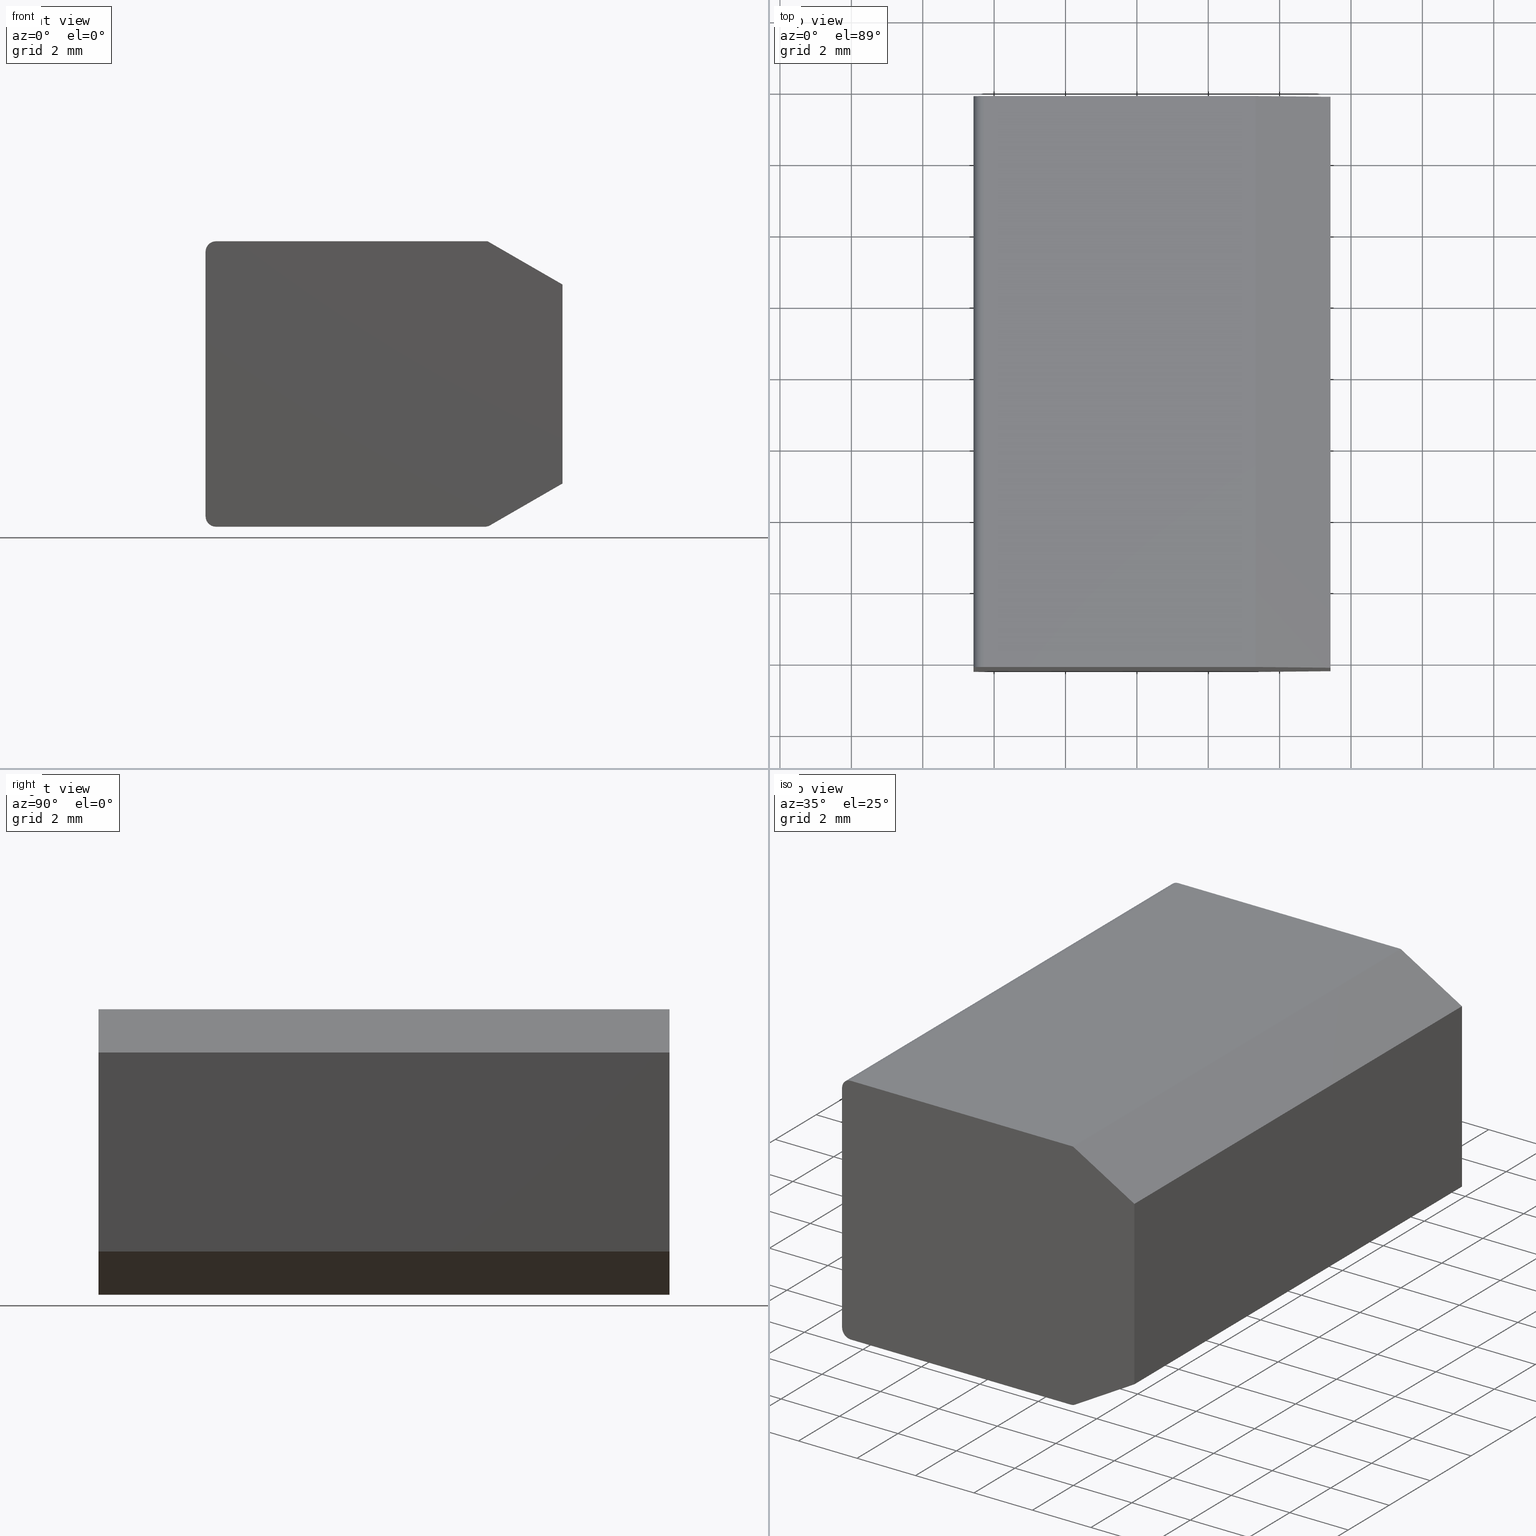
[diagram: canonical four-view strip — front | top / right | iso, engineering-drawing reading convention]
A machine part, canonical four-view strip (front | top / right | iso — engineering-drawing reading convention). The complete STEP part file that produces these views, byte-faithful:
ISO-10303-21;
HEADER;
/* Generated by software containing ST-Developer
 * from STEP Tools, Inc. (www.steptools.com) 
 */

FILE_DESCRIPTION(
/* description */ ('WKZ-0469'),
/* implementation_level */ '2;1');

FILE_NAME(
/* name */ 'O_3_01_02_00_01_WKZ-0469.stp',
/* time_stamp */ '2025-11-21T09:00:42+01:00',
/* author */ ('d.fischer'),
/* organization */ (''),
/* preprocessor_version */ 'ST-DEVELOPER v20',
/* originating_system */ 'Autodesk Inventor 2025',
/* authorisation */ '');

FILE_SCHEMA (('AUTOMOTIVE_DESIGN { 1 0 10303 214 3 1 1 }'));
ENDSEC;

DATA;
#10=MECHANICAL_DESIGN_GEOMETRIC_PRESENTATION_REPRESENTATION('',(#13),#487);
#11=SHAPE_REPRESENTATION_RELATIONSHIP('SRR','None',#494,#12);
#12=ADVANCED_BREP_SHAPE_REPRESENTATION('',(#14),#486);
#13=STYLED_ITEM('',(#503),#14);
#14=MANIFOLD_SOLID_BREP('Volumenk\X\F6rper1',#276);
#15=FACE_BOUND('',#59,.T.);
#16=FACE_BOUND('',#68,.T.);
#17=CYLINDRICAL_SURFACE('',#307,1.44827586078);
#18=CYLINDRICAL_SURFACE('',#311,3.43842364226);
#19=CYLINDRICAL_SURFACE('',#318,0.295566502200013);
#20=CYLINDRICAL_SURFACE('',#321,0.295566502199999);
#21=CYLINDRICAL_SURFACE('',#323,0.2955665022);
#22=CONICAL_SURFACE('',#305,0.724137930390002,1.01229096615671);
#23=CONICAL_SURFACE('',#309,2.44334975152,0.785398163397448);
#24=CIRCLE('',#301,0.295566502199999);
#25=CIRCLE('',#302,0.2955665022);
#26=CIRCLE('',#303,0.295566502200013);
#27=CIRCLE('',#306,1.44827586078);
#28=CIRCLE('',#308,1.44827586078);
#29=CIRCLE('',#310,3.43842364226);
#30=CIRCLE('',#312,3.43842364226);
#31=CIRCLE('',#314,0.295566502200013);
#32=CIRCLE('',#315,0.2955665022);
#33=CIRCLE('',#316,0.295566502199999);
#34=CIRCLE('',#317,3.4499999969295);
#35=FACE_OUTER_BOUND('',#51,.T.);
#36=FACE_OUTER_BOUND('',#52,.T.);
#37=FACE_OUTER_BOUND('',#53,.T.);
#38=FACE_OUTER_BOUND('',#54,.T.);
#39=FACE_OUTER_BOUND('',#55,.T.);
#40=FACE_OUTER_BOUND('',#56,.T.);
#41=FACE_OUTER_BOUND('',#57,.T.);
#42=FACE_OUTER_BOUND('',#58,.T.);
#43=FACE_OUTER_BOUND('',#60,.T.);
#44=FACE_OUTER_BOUND('',#61,.T.);
#45=FACE_OUTER_BOUND('',#62,.T.);
#46=FACE_OUTER_BOUND('',#63,.T.);
#47=FACE_OUTER_BOUND('',#64,.T.);
#48=FACE_OUTER_BOUND('',#65,.T.);
#49=FACE_OUTER_BOUND('',#66,.T.);
#50=FACE_OUTER_BOUND('',#67,.T.);
#51=EDGE_LOOP('',(#179,#180,#181,#182));
#52=EDGE_LOOP('',(#183,#184,#185,#186,#187,#188,#189,#190,#191));
#53=EDGE_LOOP('',(#192,#193,#194,#195));
#54=EDGE_LOOP('',(#196,#197,#198));
#55=EDGE_LOOP('',(#199,#200,#201,#202));
#56=EDGE_LOOP('',(#203,#204,#205,#206));
#57=EDGE_LOOP('',(#207,#208,#209,#210));
#58=EDGE_LOOP('',(#211,#212,#213,#214,#215,#216,#217,#218,#219));
#59=EDGE_LOOP('',(#220));
#60=EDGE_LOOP('',(#221,#222,#223,#224));
#61=EDGE_LOOP('',(#225,#226,#227,#228));
#62=EDGE_LOOP('',(#229,#230,#231,#232));
#63=EDGE_LOOP('',(#233,#234,#235,#236));
#64=EDGE_LOOP('',(#237,#238,#239,#240));
#65=EDGE_LOOP('',(#241,#242,#243,#244));
#66=EDGE_LOOP('',(#245,#246,#247,#248));
#67=EDGE_LOOP('',(#249));
#68=EDGE_LOOP('',(#250));
#69=LINE('',#411,#94);
#70=LINE('',#413,#95);
#71=LINE('',#415,#96);
#72=LINE('',#416,#97);
#73=LINE('',#419,#98);
#74=LINE('',#421,#99);
#75=LINE('',#425,#100);
#76=LINE('',#429,#101);
#77=LINE('',#432,#102);
#78=LINE('',#435,#103);
#79=LINE('',#436,#104);
#80=LINE('',#440,#105);
#81=LINE('',#444,#106);
#82=LINE('',#448,#107);
#83=LINE('',#452,#108);
#84=LINE('',#456,#109);
#85=LINE('',#460,#110);
#86=LINE('',#464,#111);
#87=LINE('',#467,#112);
#88=LINE('',#471,#113);
#89=LINE('',#472,#114);
#90=LINE('',#475,#115);
#91=LINE('',#477,#116);
#92=LINE('',#479,#117);
#93=LINE('',#481,#118);
#94=VECTOR('',#330,10.);
#95=VECTOR('',#331,10.);
#96=VECTOR('',#332,10.);
#97=VECTOR('',#333,10.);
#98=VECTOR('',#336,9.85221674);
#99=VECTOR('',#337,9.85221674);
#100=VECTOR('',#340,9.85221674);
#101=VECTOR('',#343,9.85221674);
#102=VECTOR('',#346,9.85221674);
#103=VECTOR('',#349,9.85221674);
#104=VECTOR('',#350,9.85221674);
#105=VECTOR('',#353,0.724137930390002);
#106=VECTOR('',#358,1.44827586078);
#107=VECTOR('',#363,2.44334975152);
#108=VECTOR('',#368,3.43842364226);
#109=VECTOR('',#373,9.85221674);
#110=VECTOR('',#376,9.85221674);
#111=VECTOR('',#379,9.85221674);
#112=VECTOR('',#382,9.85221674);
#113=VECTOR('',#387,9.85221674);
#114=VECTOR('',#388,9.85221674);
#115=VECTOR('',#393,9.85221674);
#116=VECTOR('',#396,9.85221674);
#117=VECTOR('',#399,9.85221674);
#118=VECTOR('',#402,9.85221674);
#119=VERTEX_POINT('',#409);
#120=VERTEX_POINT('',#410);
#121=VERTEX_POINT('',#412);
#122=VERTEX_POINT('',#414);
#123=VERTEX_POINT('',#418);
#124=VERTEX_POINT('',#420);
#125=VERTEX_POINT('',#422);
#126=VERTEX_POINT('',#424);
#127=VERTEX_POINT('',#426);
#128=VERTEX_POINT('',#428);
#129=VERTEX_POINT('',#430);
#130=VERTEX_POINT('',#434);
#131=VERTEX_POINT('',#438);
#132=VERTEX_POINT('',#439);
#133=VERTEX_POINT('',#443);
#134=VERTEX_POINT('',#447);
#135=VERTEX_POINT('',#451);
#136=VERTEX_POINT('',#455);
#137=VERTEX_POINT('',#457);
#138=VERTEX_POINT('',#459);
#139=VERTEX_POINT('',#461);
#140=VERTEX_POINT('',#463);
#141=VERTEX_POINT('',#465);
#142=VERTEX_POINT('',#468);
#143=EDGE_CURVE('',#119,#120,#69,.T.);
#144=EDGE_CURVE('',#121,#119,#70,.T.);
#145=EDGE_CURVE('',#122,#121,#71,.T.);
#146=EDGE_CURVE('',#120,#122,#72,.T.);
#147=EDGE_CURVE('',#122,#123,#73,.T.);
#148=EDGE_CURVE('',#123,#124,#74,.T.);
#149=EDGE_CURVE('',#124,#125,#24,.T.);
#150=EDGE_CURVE('',#125,#126,#75,.T.);
#151=EDGE_CURVE('',#126,#127,#25,.T.);
#152=EDGE_CURVE('',#127,#128,#76,.T.);
#153=EDGE_CURVE('',#128,#129,#26,.T.);
#154=EDGE_CURVE('',#129,#120,#77,.T.);
#155=EDGE_CURVE('',#130,#121,#78,.T.);
#156=EDGE_CURVE('',#123,#130,#79,.T.);
#157=EDGE_CURVE('',#131,#132,#80,.T.);
#158=EDGE_CURVE('',#132,#132,#27,.T.);
#159=EDGE_CURVE('',#132,#133,#81,.T.);
#160=EDGE_CURVE('',#133,#133,#28,.T.);
#161=EDGE_CURVE('',#133,#134,#82,.T.);
#162=EDGE_CURVE('',#134,#134,#29,.T.);
#163=EDGE_CURVE('',#134,#135,#83,.T.);
#164=EDGE_CURVE('',#135,#135,#30,.T.);
#165=EDGE_CURVE('',#119,#136,#84,.T.);
#166=EDGE_CURVE('',#136,#137,#31,.T.);
#167=EDGE_CURVE('',#137,#138,#85,.T.);
#168=EDGE_CURVE('',#138,#139,#32,.T.);
#169=EDGE_CURVE('',#139,#140,#86,.T.);
#170=EDGE_CURVE('',#140,#141,#33,.T.);
#171=EDGE_CURVE('',#141,#130,#87,.T.);
#172=EDGE_CURVE('',#142,#142,#34,.T.);
#173=EDGE_CURVE('',#129,#136,#88,.T.);
#174=EDGE_CURVE('',#128,#137,#89,.T.);
#175=EDGE_CURVE('',#124,#141,#90,.T.);
#176=EDGE_CURVE('',#125,#140,#91,.T.);
#177=EDGE_CURVE('',#126,#139,#92,.T.);
#178=EDGE_CURVE('',#127,#138,#93,.T.);
#179=ORIENTED_EDGE('',*,*,#143,.F.);
#180=ORIENTED_EDGE('',*,*,#144,.F.);
#181=ORIENTED_EDGE('',*,*,#145,.F.);
#182=ORIENTED_EDGE('',*,*,#146,.F.);
#183=ORIENTED_EDGE('',*,*,#146,.T.);
#184=ORIENTED_EDGE('',*,*,#147,.T.);
#185=ORIENTED_EDGE('',*,*,#148,.T.);
#186=ORIENTED_EDGE('',*,*,#149,.T.);
#187=ORIENTED_EDGE('',*,*,#150,.T.);
#188=ORIENTED_EDGE('',*,*,#151,.T.);
#189=ORIENTED_EDGE('',*,*,#152,.T.);
#190=ORIENTED_EDGE('',*,*,#153,.T.);
#191=ORIENTED_EDGE('',*,*,#154,.T.);
#192=ORIENTED_EDGE('',*,*,#145,.T.);
#193=ORIENTED_EDGE('',*,*,#155,.F.);
#194=ORIENTED_EDGE('',*,*,#156,.F.);
#195=ORIENTED_EDGE('',*,*,#147,.F.);
#196=ORIENTED_EDGE('',*,*,#157,.T.);
#197=ORIENTED_EDGE('',*,*,#158,.T.);
#198=ORIENTED_EDGE('',*,*,#157,.F.);
#199=ORIENTED_EDGE('',*,*,#158,.F.);
#200=ORIENTED_EDGE('',*,*,#159,.T.);
#201=ORIENTED_EDGE('',*,*,#160,.T.);
#202=ORIENTED_EDGE('',*,*,#159,.F.);
#203=ORIENTED_EDGE('',*,*,#160,.F.);
#204=ORIENTED_EDGE('',*,*,#161,.T.);
#205=ORIENTED_EDGE('',*,*,#162,.T.);
#206=ORIENTED_EDGE('',*,*,#161,.F.);
#207=ORIENTED_EDGE('',*,*,#162,.F.);
#208=ORIENTED_EDGE('',*,*,#163,.T.);
#209=ORIENTED_EDGE('',*,*,#164,.F.);
#210=ORIENTED_EDGE('',*,*,#163,.F.);
#211=ORIENTED_EDGE('',*,*,#144,.T.);
#212=ORIENTED_EDGE('',*,*,#165,.T.);
#213=ORIENTED_EDGE('',*,*,#166,.T.);
#214=ORIENTED_EDGE('',*,*,#167,.T.);
#215=ORIENTED_EDGE('',*,*,#168,.T.);
#216=ORIENTED_EDGE('',*,*,#169,.T.);
#217=ORIENTED_EDGE('',*,*,#170,.T.);
#218=ORIENTED_EDGE('',*,*,#171,.T.);
#219=ORIENTED_EDGE('',*,*,#155,.T.);
#220=ORIENTED_EDGE('',*,*,#172,.F.);
#221=ORIENTED_EDGE('',*,*,#166,.F.);
#222=ORIENTED_EDGE('',*,*,#173,.F.);
#223=ORIENTED_EDGE('',*,*,#153,.F.);
#224=ORIENTED_EDGE('',*,*,#174,.T.);
#225=ORIENTED_EDGE('',*,*,#143,.T.);
#226=ORIENTED_EDGE('',*,*,#154,.F.);
#227=ORIENTED_EDGE('',*,*,#173,.T.);
#228=ORIENTED_EDGE('',*,*,#165,.F.);
#229=ORIENTED_EDGE('',*,*,#171,.F.);
#230=ORIENTED_EDGE('',*,*,#175,.F.);
#231=ORIENTED_EDGE('',*,*,#148,.F.);
#232=ORIENTED_EDGE('',*,*,#156,.T.);
#233=ORIENTED_EDGE('',*,*,#170,.F.);
#234=ORIENTED_EDGE('',*,*,#176,.F.);
#235=ORIENTED_EDGE('',*,*,#149,.F.);
#236=ORIENTED_EDGE('',*,*,#175,.T.);
#237=ORIENTED_EDGE('',*,*,#169,.F.);
#238=ORIENTED_EDGE('',*,*,#177,.F.);
#239=ORIENTED_EDGE('',*,*,#150,.F.);
#240=ORIENTED_EDGE('',*,*,#176,.T.);
#241=ORIENTED_EDGE('',*,*,#168,.F.);
#242=ORIENTED_EDGE('',*,*,#178,.F.);
#243=ORIENTED_EDGE('',*,*,#151,.F.);
#244=ORIENTED_EDGE('',*,*,#177,.T.);
#245=ORIENTED_EDGE('',*,*,#167,.F.);
#246=ORIENTED_EDGE('',*,*,#174,.F.);
#247=ORIENTED_EDGE('',*,*,#152,.F.);
#248=ORIENTED_EDGE('',*,*,#178,.T.);
#249=ORIENTED_EDGE('',*,*,#172,.T.);
#250=ORIENTED_EDGE('',*,*,#164,.T.);
#251=PLANE('',#299);
#252=PLANE('',#300);
#253=PLANE('',#304);
#254=PLANE('',#313);
#255=PLANE('',#319);
#256=PLANE('',#320);
#257=PLANE('',#322);
#258=PLANE('',#324);
#259=PLANE('',#325);
#260=ADVANCED_FACE('',(#35),#251,.F.);
#261=ADVANCED_FACE('',(#36),#252,.T.);
#262=ADVANCED_FACE('',(#37),#253,.T.);
#263=ADVANCED_FACE('',(#38),#22,.F.);
#264=ADVANCED_FACE('',(#39),#17,.F.);
#265=ADVANCED_FACE('',(#40),#23,.F.);
#266=ADVANCED_FACE('',(#41),#18,.F.);
#267=ADVANCED_FACE('',(#42,#15),#254,.T.);
#268=ADVANCED_FACE('',(#43),#19,.T.);
#269=ADVANCED_FACE('',(#44),#255,.T.);
#270=ADVANCED_FACE('',(#45),#256,.T.);
#271=ADVANCED_FACE('',(#46),#20,.T.);
#272=ADVANCED_FACE('',(#47),#257,.T.);
#273=ADVANCED_FACE('',(#48),#21,.T.);
#274=ADVANCED_FACE('',(#49),#258,.T.);
#275=ADVANCED_FACE('',(#50,#16),#259,.T.);
#276=CLOSED_SHELL('',(#260,#261,#262,#263,#264,#265,#266,#267,#268,#269,
#270,#271,#272,#273,#274,#275));
#277=DERIVED_UNIT_ELEMENT(#280,1.);
#278=DERIVED_UNIT_ELEMENT(#489,-3.);
#279=DIMENSIONAL_EXPONENTS(0.,1.,0.,0.,0.,0.,0.);
#280=(
CONVERSION_BASED_UNIT('gram',#282)
MASS_UNIT()
NAMED_UNIT(#279)
);
#281=(
MASS_UNIT()
NAMED_UNIT(*)
SI_UNIT(.KILO.,.GRAM.)
);
#282=MASS_MEASURE_WITH_UNIT(MASS_MEASURE(0.001),#281);
#283=DERIVED_UNIT((#277,#278));
#284=MEASURE_REPRESENTATION_ITEM('density measure',
POSITIVE_RATIO_MEASURE(1.),#283);
#285=PROPERTY_DEFINITION_REPRESENTATION(#290,#287);
#286=PROPERTY_DEFINITION_REPRESENTATION(#291,#288);
#287=REPRESENTATION('material name',(#289),#486);
#288=REPRESENTATION('density',(#284),#486);
#289=DESCRIPTIVE_REPRESENTATION_ITEM('Generisch','Generisch');
#290=PROPERTY_DEFINITION('material property','material name',#496);
#291=PROPERTY_DEFINITION('material property','density of part',#496);
#292=DATE_TIME_ROLE('creation_date');
#293=APPLIED_DATE_AND_TIME_ASSIGNMENT(#294,#292,(#496));
#294=DATE_AND_TIME(#295,#296);
#295=CALENDAR_DATE(2025,18,8);
#296=LOCAL_TIME(0,0,0.,#297);
#297=COORDINATED_UNIVERSAL_TIME_OFFSET(0,0,.BEHIND.);
#298=AXIS2_PLACEMENT_3D('',#407,#326,#327);
#299=AXIS2_PLACEMENT_3D('',#408,#328,#329);
#300=AXIS2_PLACEMENT_3D('',#417,#334,#335);
#301=AXIS2_PLACEMENT_3D('',#423,#338,#339);
#302=AXIS2_PLACEMENT_3D('',#427,#341,#342);
#303=AXIS2_PLACEMENT_3D('',#431,#344,#345);
#304=AXIS2_PLACEMENT_3D('',#433,#347,#348);
#305=AXIS2_PLACEMENT_3D('',#437,#351,#352);
#306=AXIS2_PLACEMENT_3D('',#441,#354,#355);
#307=AXIS2_PLACEMENT_3D('',#442,#356,#357);
#308=AXIS2_PLACEMENT_3D('',#445,#359,#360);
#309=AXIS2_PLACEMENT_3D('',#446,#361,#362);
#310=AXIS2_PLACEMENT_3D('',#449,#364,#365);
#311=AXIS2_PLACEMENT_3D('',#450,#366,#367);
#312=AXIS2_PLACEMENT_3D('',#453,#369,#370);
#313=AXIS2_PLACEMENT_3D('',#454,#371,#372);
#314=AXIS2_PLACEMENT_3D('',#458,#374,#375);
#315=AXIS2_PLACEMENT_3D('',#462,#377,#378);
#316=AXIS2_PLACEMENT_3D('',#466,#380,#381);
#317=AXIS2_PLACEMENT_3D('',#469,#383,#384);
#318=AXIS2_PLACEMENT_3D('',#470,#385,#386);
#319=AXIS2_PLACEMENT_3D('',#473,#389,#390);
#320=AXIS2_PLACEMENT_3D('',#474,#391,#392);
#321=AXIS2_PLACEMENT_3D('',#476,#394,#395);
#322=AXIS2_PLACEMENT_3D('',#478,#397,#398);
#323=AXIS2_PLACEMENT_3D('',#480,#400,#401);
#324=AXIS2_PLACEMENT_3D('',#482,#403,#404);
#325=AXIS2_PLACEMENT_3D('',#483,#405,#406);
#326=DIRECTION('axis',(0.,0.,1.));
#327=DIRECTION('refdir',(1.,0.,0.));
#328=DIRECTION('center_axis',(-1.,1.78098277025459E-15,5.83839535189802E-16));
#329=DIRECTION('ref_axis',(-5.83839535189803E-16,-3.53883589099267E-16,
-1.));
#330=DIRECTION('',(-1.78098277025459E-15,-1.,3.5121280667526E-16));
#331=DIRECTION('',(-5.83839535189803E-16,-3.53883589099267E-16,-1.));
#332=DIRECTION('',(1.78098277025459E-15,1.,-3.56554371523276E-16));
#333=DIRECTION('',(5.83839535189803E-16,3.53883589099267E-16,1.));
#334=DIRECTION('center_axis',(-1.77635683940025E-15,-1.,3.53883589099268E-16));
#335=DIRECTION('ref_axis',(1.,-1.77635683940025E-15,-3.88578058618804E-16));
#336=DIRECTION('',(-0.866025403784438,1.71531194365648E-15,0.500000000000001));
#337=DIRECTION('',(-1.,1.77635683940025E-15,3.81533496279812E-16));
#338=DIRECTION('center_axis',(-1.77635683940025E-15,-1.,3.53883589099268E-16));
#339=DIRECTION('ref_axis',(-1.,1.77635683940025E-15,-2.50262773467589E-15));
#340=DIRECTION('',(-3.88578058618805E-16,-3.53883589099267E-16,-1.));
#341=DIRECTION('center_axis',(-1.77635683940025E-15,-1.,3.53883589099268E-16));
#342=DIRECTION('ref_axis',(-3.88578058618805E-16,-3.53883589099267E-16,
-1.));
#343=DIRECTION('',(1.,-1.77635683940025E-15,-3.88578058618804E-16));
#344=DIRECTION('center_axis',(-1.77635683940025E-15,-1.,3.53883589099268E-16));
#345=DIRECTION('ref_axis',(0.499999999999992,-1.19465059784249E-15,-0.866025403784443));
#346=DIRECTION('',(0.866025403784439,-1.36142835455722E-15,0.5));
#347=DIRECTION('center_axis',(0.500000000000001,-5.81706241557748E-16,0.866025403784438));
#348=DIRECTION('ref_axis',(0.866025403784438,-1.71531194365648E-15,-0.500000000000001));
#349=DIRECTION('',(0.866025403784438,-1.71531194365648E-15,-0.500000000000001));
#350=DIRECTION('',(1.77635683940025E-15,1.,-3.53883589099268E-16));
#351=DIRECTION('center_axis',(-3.88578058618805E-16,1.,-3.53883589099266E-16));
#352=DIRECTION('ref_axis',(-4.99600361081319E-16,-3.53883589099266E-16,
-1.));
#353=DIRECTION('',(3.21626074781728E-16,0.529919264233206,0.848048096156425));
#354=DIRECTION('center_axis',(-3.88578058618805E-16,1.,-3.53883589099266E-16));
#355=DIRECTION('ref_axis',(1.,3.88578058618805E-16,-4.99600361081319E-16));
#356=DIRECTION('center_axis',(-3.88578058618805E-16,1.,-3.53883589099266E-16));
#357=DIRECTION('ref_axis',(-4.99600361081319E-16,-3.53883589099267E-16,
-1.));
#358=DIRECTION('',(-3.88578058618805E-16,1.,-3.53883589099266E-16));
#359=DIRECTION('center_axis',(-3.88578058618805E-16,1.,-3.53883589099266E-16));
#360=DIRECTION('ref_axis',(1.,3.88578058618805E-16,-4.99600361081319E-16));
#361=DIRECTION('center_axis',(-3.88578058618805E-16,1.,-3.53883589099266E-16));
#362=DIRECTION('ref_axis',(-4.99600361081319E-16,-3.53883589099267E-16,
-1.));
#363=DIRECTION('',(1.65100228557737E-16,0.707106781186548,0.707106781186547));
#364=DIRECTION('center_axis',(-3.88578058618805E-16,1.,-3.53883589099266E-16));
#365=DIRECTION('ref_axis',(1.,3.88578058618805E-16,-4.99600361081319E-16));
#366=DIRECTION('center_axis',(-3.88578058618805E-16,1.,-3.53883589099266E-16));
#367=DIRECTION('ref_axis',(-4.99600361081319E-16,-3.53883589099267E-16,
-1.));
#368=DIRECTION('',(-3.88578058618805E-16,1.,-3.53883589099266E-16));
#369=DIRECTION('center_axis',(-1.77635683940025E-15,-1.,3.53883589099268E-16));
#370=DIRECTION('ref_axis',(-4.99600361081319E-16,-3.53883589099267E-16,
-1.));
#371=DIRECTION('center_axis',(1.77635683940025E-15,1.,-3.53883589099268E-16));
#372=DIRECTION('ref_axis',(-1.,1.77635683940025E-15,3.88578058618804E-16));
#373=DIRECTION('',(-0.866025403784439,1.36142835455722E-15,-0.5));
#374=DIRECTION('center_axis',(1.77635683940025E-15,1.,-3.53883589099268E-16));
#375=DIRECTION('ref_axis',(0.499999999999992,-1.19465059784249E-15,-0.866025403784443));
#376=DIRECTION('',(-1.,1.77635683940025E-15,3.88578058618804E-16));
#377=DIRECTION('center_axis',(1.77635683940025E-15,1.,-3.53883589099268E-16));
#378=DIRECTION('ref_axis',(-3.88578058618805E-16,-3.53883589099267E-16,
-1.));
#379=DIRECTION('',(3.88578058618805E-16,3.53883589099267E-16,1.));
#380=DIRECTION('center_axis',(1.77635683940025E-15,1.,-3.53883589099268E-16));
#381=DIRECTION('ref_axis',(-1.,1.77635683940025E-15,-2.50262773467589E-15));
#382=DIRECTION('',(1.,-1.77635683940025E-15,-3.81533496279812E-16));
#383=DIRECTION('center_axis',(1.77635683940025E-15,1.,-3.53883589099268E-16));
#384=DIRECTION('ref_axis',(3.12638955893458E-16,-2.57285416780356E-16,1.));
#385=DIRECTION('center_axis',(1.77635683940025E-15,1.,-3.53883589099268E-16));
#386=DIRECTION('ref_axis',(0.499999999999992,-1.19465059784249E-15,-0.866025403784443));
#387=DIRECTION('',(1.77635683940025E-15,1.,-3.53883589099268E-16));
#388=DIRECTION('',(1.77635683940025E-15,1.,-3.53883589099268E-16));
#389=DIRECTION('center_axis',(0.5,-1.1946505978425E-15,-0.866025403784439));
#390=DIRECTION('ref_axis',(-0.866025403784439,1.36142835455722E-15,-0.5));
#391=DIRECTION('center_axis',(3.81533496279813E-16,3.53883589099267E-16,
1.));
#392=DIRECTION('ref_axis',(1.,-1.77635683940025E-15,-3.81533496279812E-16));
#393=DIRECTION('',(1.77635683940025E-15,1.,-3.53883589099268E-16));
#394=DIRECTION('center_axis',(1.77635683940025E-15,1.,-3.53883589099268E-16));
#395=DIRECTION('ref_axis',(-1.,1.77635683940025E-15,-2.50262773467589E-15));
#396=DIRECTION('',(1.77635683940025E-15,1.,-3.53883589099268E-16));
#397=DIRECTION('center_axis',(-1.,1.77635683940025E-15,3.88578058618804E-16));
#398=DIRECTION('ref_axis',(3.88578058618805E-16,3.53883589099267E-16,1.));
#399=DIRECTION('',(1.77635683940025E-15,1.,-3.53883589099268E-16));
#400=DIRECTION('center_axis',(1.77635683940025E-15,1.,-3.53883589099268E-16));
#401=DIRECTION('ref_axis',(-3.88578058618805E-16,-3.53883589099267E-16,
-1.));
#402=DIRECTION('',(1.77635683940025E-15,1.,-3.53883589099268E-16));
#403=DIRECTION('center_axis',(-3.88578058618805E-16,-3.53883589099267E-16,
-1.));
#404=DIRECTION('ref_axis',(-1.,1.77635683940025E-15,3.88578058618804E-16));
#405=DIRECTION('center_axis',(1.77635683940025E-15,1.,-3.53883589099268E-16));
#406=DIRECTION('ref_axis',(-1.,1.77635683940025E-15,3.88578058618804E-16));
#407=CARTESIAN_POINT('',(0.,0.,0.));
#408=CARTESIAN_POINT('Origin',(-4.57583974066249,41.8049562482497,-28.3397922968425));
#409=CARTESIAN_POINT('',(-4.57583974066249,41.8049562482497,-34.1284674292122));
#410=CARTESIAN_POINT('',(-4.57583974066252,25.8049562624897,-34.1284674292122));
#411=CARTESIAN_POINT('',(-4.5758397406625,33.8049562553697,-34.1284674292122));
#412=CARTESIAN_POINT('',(-4.57583974066249,41.8049562482497,-28.5511171644726));
#413=CARTESIAN_POINT('',(-4.57583974066249,41.8049562482497,-29.8397922968424));
#414=CARTESIAN_POINT('',(-4.57583974066251,25.8049562624897,-28.5511171644726));
#415=CARTESIAN_POINT('',(-4.5758397406625,33.8049562553697,-28.5511171644726));
#416=CARTESIAN_POINT('',(-4.57583974066252,25.8049562624897,-29.8397922968424));
#417=CARTESIAN_POINT('Origin',(-10.80367224699,25.8049562624898,-31.3397922968424));
#418=CARTESIAN_POINT('',(-6.67391594970354,25.8049562624898,-27.3397923004024));
#419=CARTESIAN_POINT('',(-7.35654915817229,25.8049562624897,-26.9456738337352));
#420=CARTESIAN_POINT('',(-14.2802732291175,25.8049562624898,-27.3397923004024));
#421=CARTESIAN_POINT('',(-12.5419727380538,25.8049562624898,-27.3397923004024));
#422=CARTESIAN_POINT('',(-14.5758397313175,25.8049562624898,-27.6353588026024));
#423=CARTESIAN_POINT('Origin',(-14.2802732291175,25.8049562624898,-27.6353588026024));
#424=CARTESIAN_POINT('',(-14.5758397313175,25.8049562624898,-35.0442257910824));
#425=CARTESIAN_POINT('',(-14.5758397313175,25.8049562624898,-33.1920090439624));
#426=CARTESIAN_POINT('',(-14.2802732291175,25.8049562624898,-35.3397922932824));
#427=CARTESIAN_POINT('Origin',(-14.2802732291175,25.8049562624898,-35.0442257910824));
#428=CARTESIAN_POINT('',(-6.75311275527772,25.8049562624897,-35.3397922932824));
#429=CARTESIAN_POINT('',(-8.77839250113387,25.8049562624897,-35.3397922932824));
#430=CARTESIAN_POINT('',(-6.60532950417772,25.8049562624897,-35.3001938904953));
#431=CARTESIAN_POINT('Origin',(-6.75311275527772,25.8049562624897,-35.0442257910824));
#432=CARTESIAN_POINT('',(-6.13140267920178,25.8049562624897,-35.0265721105192));
#433=CARTESIAN_POINT('Origin',(-6.67391594970354,25.8049562624898,-27.3397923004024));
#434=CARTESIAN_POINT('',(-6.67391594970351,41.8049562482498,-27.3397923004024));
#435=CARTESIAN_POINT('',(-7.35654915817226,41.8049562482497,-26.9456738337352));
#436=CARTESIAN_POINT('',(-6.67391594970354,25.8049562624898,-27.3397923004024));
#437=CARTESIAN_POINT('Origin',(-9.57583973576758,34.3327602217438,-31.3397922968424));
#438=CARTESIAN_POINT('',(-9.57583973576758,33.8802686224881,-31.3397922968424));
#439=CARTESIAN_POINT('',(-9.57583973576758,34.7852518209996,-29.8915164360623));
#440=CARTESIAN_POINT('',(-9.57583973576758,34.3327602217438,-30.6156543664524));
#441=CARTESIAN_POINT('Origin',(-9.57583973576758,34.7852518209996,-31.3397922968424));
#442=CARTESIAN_POINT('Origin',(-9.57583973576758,37.2901779271446,-31.3397922968424));
#443=CARTESIAN_POINT('',(-9.57583973576758,39.7951040332897,-29.8915164360624));
#444=CARTESIAN_POINT('',(-9.57583973576758,37.2901779271446,-29.8915164360624));
#445=CARTESIAN_POINT('Origin',(-9.57583973576758,39.7951040332897,-31.3397922968424));
#446=CARTESIAN_POINT('Origin',(-9.57583973576758,40.7901779240296,-31.3397922968424));
#447=CARTESIAN_POINT('',(-9.57583973576758,41.7852518147697,-27.9013686545824));
#448=CARTESIAN_POINT('',(-9.57583973576758,40.7901779240296,-28.8964425453224));
#449=CARTESIAN_POINT('Origin',(-9.57583973576758,41.7852518147697,-31.3397922968424));
#450=CARTESIAN_POINT('Origin',(-9.57583973576758,43.2729365425097,-31.3397922968424));
#451=CARTESIAN_POINT('',(-9.57583973576758,41.8049562482498,-27.9013686545824));
#452=CARTESIAN_POINT('',(-9.57583973576758,43.2729365425097,-27.9013686545824));
#453=CARTESIAN_POINT('Origin',(-9.57583973576758,41.8049562482498,-31.3397922968424));
#454=CARTESIAN_POINT('Origin',(-10.80367224699,41.8049562482498,-31.3397922968424));
#455=CARTESIAN_POINT('',(-6.6053295041777,41.8049562482497,-35.3001938904953));
#456=CARTESIAN_POINT('',(-6.13140267920176,41.8049562482497,-35.0265721105192));
#457=CARTESIAN_POINT('',(-6.75311275527769,41.8049562482497,-35.3397922932824));
#458=CARTESIAN_POINT('Origin',(-6.75311275527769,41.8049562482497,-35.0442257910824));
#459=CARTESIAN_POINT('',(-14.2802732291175,41.8049562482498,-35.3397922932824));
#460=CARTESIAN_POINT('',(-8.77839250113384,41.8049562482497,-35.3397922932824));
#461=CARTESIAN_POINT('',(-14.5758397313175,41.8049562482498,-35.0442257910824));
#462=CARTESIAN_POINT('Origin',(-14.2802732291175,41.8049562482498,-35.0442257910824));
#463=CARTESIAN_POINT('',(-14.5758397313175,41.8049562482498,-27.6353588026024));
#464=CARTESIAN_POINT('',(-14.5758397313175,41.8049562482498,-33.1920090439624));
#465=CARTESIAN_POINT('',(-14.2802732291175,41.8049562482498,-27.3397923004024));
#466=CARTESIAN_POINT('Origin',(-14.2802732291175,41.8049562482498,-27.6353588026024));
#467=CARTESIAN_POINT('',(-12.5419727380537,41.8049562482498,-27.3397923004024));
#468=CARTESIAN_POINT('',(-9.57583973576755,41.8049562482497,-34.789792293772));
#469=CARTESIAN_POINT('Origin',(-9.57583973576754,41.8049562482498,-31.3397922968425));
#470=CARTESIAN_POINT('Origin',(-6.75311275527772,25.8049562624897,-35.0442257910824));
#471=CARTESIAN_POINT('',(-6.60532950417772,25.8049562624897,-35.3001938904953));
#472=CARTESIAN_POINT('',(-6.75311275527772,25.8049562624897,-35.3397922932824));
#473=CARTESIAN_POINT('Origin',(-4.22362299176252,25.8049562624897,-33.9251149944217));
#474=CARTESIAN_POINT('Origin',(-14.2802732291175,25.8049562624898,-27.3397923004024));
#475=CARTESIAN_POINT('',(-14.2802732291175,25.8049562624898,-27.3397923004024));
#476=CARTESIAN_POINT('Origin',(-14.2802732291175,25.8049562624898,-27.6353588026024));
#477=CARTESIAN_POINT('',(-14.5758397313175,25.8049562624898,-27.6353588026024));
#478=CARTESIAN_POINT('Origin',(-14.5758397313175,25.8049562624898,-35.0442257910824));
#479=CARTESIAN_POINT('',(-14.5758397313175,25.8049562624898,-35.0442257910824));
#480=CARTESIAN_POINT('Origin',(-14.2802732291175,25.8049562624898,-35.0442257910824));
#481=CARTESIAN_POINT('',(-14.2802732291175,25.8049562624898,-35.3397922932824));
#482=CARTESIAN_POINT('Origin',(-6.75311275527772,25.8049562624897,-35.3397922932824));
#483=CARTESIAN_POINT('Origin',(-10.80367224699,41.8049562482498,-31.3397922968424));
#484=UNCERTAINTY_MEASURE_WITH_UNIT(LENGTH_MEASURE(0.01),#488,
'DISTANCE_ACCURACY_VALUE',
'Maximum model space distance between geometric entities at asserted c
onnectivities');
#485=UNCERTAINTY_MEASURE_WITH_UNIT(LENGTH_MEASURE(0.01),#488,
'DISTANCE_ACCURACY_VALUE',
'Maximum model space distance between geometric entities at asserted c
onnectivities');
#486=(
GEOMETRIC_REPRESENTATION_CONTEXT(3)
GLOBAL_UNCERTAINTY_ASSIGNED_CONTEXT((#484))
GLOBAL_UNIT_ASSIGNED_CONTEXT((#488,#490,#491))
REPRESENTATION_CONTEXT('','3D')
);
#487=(
GEOMETRIC_REPRESENTATION_CONTEXT(3)
GLOBAL_UNCERTAINTY_ASSIGNED_CONTEXT((#485))
GLOBAL_UNIT_ASSIGNED_CONTEXT((#488,#490,#491))
REPRESENTATION_CONTEXT('','3D')
);
#488=(
LENGTH_UNIT()
NAMED_UNIT(*)
SI_UNIT(.MILLI.,.METRE.)
);
#489=(
LENGTH_UNIT()
NAMED_UNIT(*)
SI_UNIT(.CENTI.,.METRE.)
);
#490=(
NAMED_UNIT(*)
PLANE_ANGLE_UNIT()
SI_UNIT($,.RADIAN.)
);
#491=(
NAMED_UNIT(*)
SI_UNIT($,.STERADIAN.)
SOLID_ANGLE_UNIT()
);
#492=SHAPE_DEFINITION_REPRESENTATION(#493,#494);
#493=PRODUCT_DEFINITION_SHAPE('',$,#496);
#494=SHAPE_REPRESENTATION('',(#298),#486);
#495=PRODUCT_DEFINITION_CONTEXT('part definition',#500,'design');
#496=PRODUCT_DEFINITION('O_3_01_02_00_01_WKZ-0469',
'O_3_01_02_00_01_WKZ-0469',#497,#495);
#497=PRODUCT_DEFINITION_FORMATION('',$,#502);
#498=PRODUCT_RELATED_PRODUCT_CATEGORY('O_3_01_02_00_01_WKZ-0469',
'O_3_01_02_00_01_WKZ-0469',(#502));
#499=APPLICATION_PROTOCOL_DEFINITION('international standard',
'automotive_design',2009,#500);
#500=APPLICATION_CONTEXT(
'Core Data for Automotive Mechanical Design Process');
#501=PRODUCT_CONTEXT('part definition',#500,'mechanical');
#502=PRODUCT('O_3_01_02_00_01_WKZ-0469','O_3_01_02_00_01_WKZ-0469',
'WKZ-0469',(#501));
#503=PRESENTATION_STYLE_ASSIGNMENT((#504));
#504=SURFACE_STYLE_USAGE(.BOTH.,#507);
#505=SURFACE_STYLE_RENDERING_WITH_PROPERTIES($,#511,(#506));
#506=SURFACE_STYLE_TRANSPARENT(0.);
#507=SURFACE_SIDE_STYLE('',(#508,#505));
#508=SURFACE_STYLE_FILL_AREA(#509);
#509=FILL_AREA_STYLE('',(#510));
#510=FILL_AREA_STYLE_COLOUR('',#511);
#511=COLOUR_RGB('',0.749019607843137,0.749019607843137,0.749019607843137);
ENDSEC;
END-ISO-10303-21;
